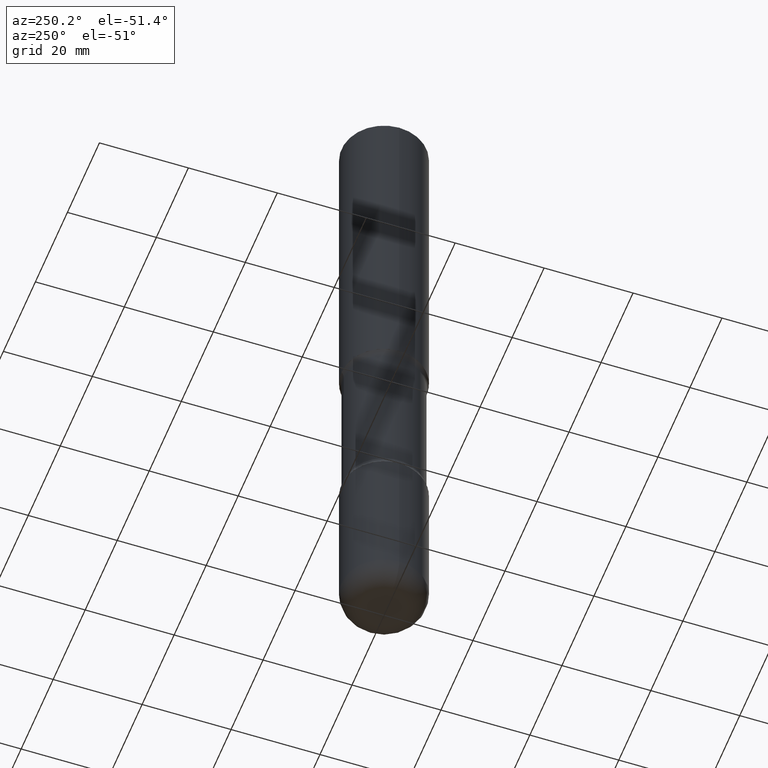
[diagram: clean part render]
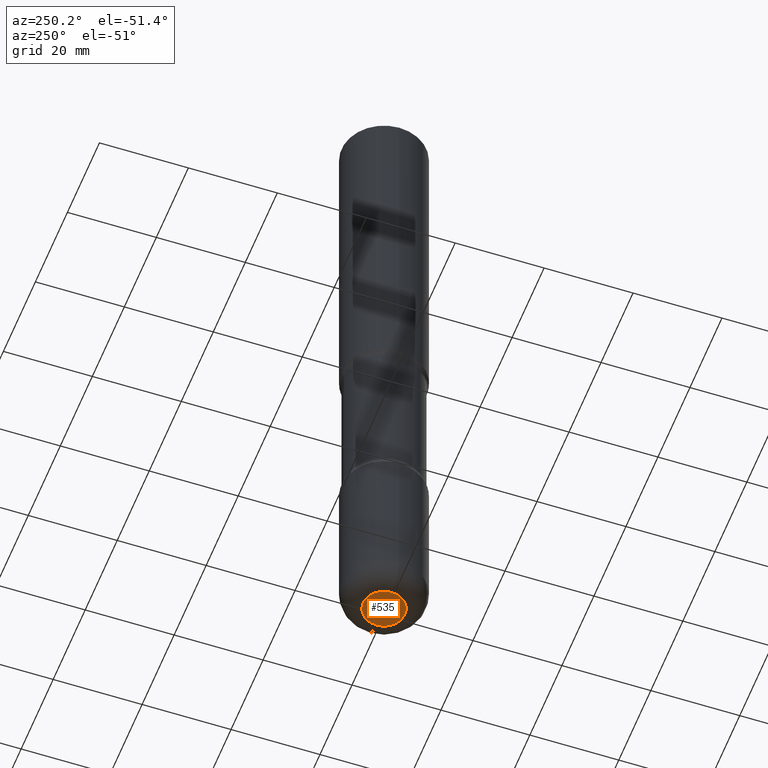
[diagram: same view with one face highlighted and labeled with its STEP entity id]
A machine part, auxiliary view. The second image highlights one B-rep face of the part: STEP entity #535.
In plain terms, the highlighted planar face has unit normal (0, -0, -1).
Its self-contained STEP definition (entity closure, byte-faithful):
#4 = FACE_OUTER_BOUND ( 'NONE', #90, .T. ) ;
#82 = CARTESIAN_POINT ( 'NONE',  ( 1.467281283711081510E-28, -2.094888803305886640E-14, -5.999999999999998224 ) ) ;
#90 = EDGE_LOOP ( 'NONE', ( #519, #492 ) ) ;
#150 = VERTEX_POINT ( 'NONE', #463 ) ;
#158 = AXIS2_PLACEMENT_3D ( 'NONE', #439, #425, #265 ) ;
#174 = CARTESIAN_POINT ( 'NONE',  ( 3.942056537445517590E-28, 1.449130215501796692E-14, -5.999999999999999112 ) ) ;
#215 = EDGE_CURVE ( 'NONE', #490, #150, #240, .T. ) ;
#227 = DIRECTION ( 'NONE',  ( 2.438088387897960049E-29, -3.491481338843145188E-15, -1.000000000000000000 ) ) ;
#240 = CIRCLE ( 'NONE', #158, 0.1850000000000005806 ) ;
#265 = DIRECTION ( 'NONE',  ( 1.000000000000000000, -6.982962677686264344E-15, 0.000000000000000000 ) ) ;
#314 = CARTESIAN_POINT ( 'NONE',  ( 0.1850000000000005806, -2.224073612843082952E-14, -5.999999999999998224 ) ) ;
#339 = AXIS2_PLACEMENT_3D ( 'NONE', #82, #469, #362 ) ;
#359 = CIRCLE ( 'NONE', #339, 0.1850000000000005806 ) ;
#362 = DIRECTION ( 'NONE',  ( 1.000000000000000000, -6.982962677686264344E-15, 0.000000000000000000 ) ) ;
#382 = PLANE ( 'NONE',  #435 ) ;
#425 = DIRECTION ( 'NONE',  ( -2.445468806185136597E-29, 3.491481338843145583E-15, 1.000000000000000000 ) ) ;
#435 = AXIS2_PLACEMENT_3D ( 'NONE', #174, #227, #512 ) ;
#439 = CARTESIAN_POINT ( 'NONE',  ( 1.467281283711081510E-28, -2.094888803305886640E-14, -5.999999999999998224 ) ) ;
#463 = CARTESIAN_POINT ( 'NONE',  ( -0.1850000000000005806, -1.862767764574048423E-14, -5.999999999999998224 ) ) ;
#469 = DIRECTION ( 'NONE',  ( -2.445468806185136597E-29, 3.491481338843145583E-15, 1.000000000000000000 ) ) ;
#490 = VERTEX_POINT ( 'NONE', #314 ) ;
#492 = ORIENTED_EDGE ( 'NONE', *, *, #543, .F. ) ;
#512 = DIRECTION ( 'NONE',  ( -1.000000000000000000, 6.982962677686265922E-15, -4.876176775795935793E-29 ) ) ;
#519 = ORIENTED_EDGE ( 'NONE', *, *, #215, .F. ) ;
#535 = ADVANCED_FACE ( 'NONE', ( #4 ), #382, .T. ) ;
#543 = EDGE_CURVE ( 'NONE', #150, #490, #359, .T. ) ;